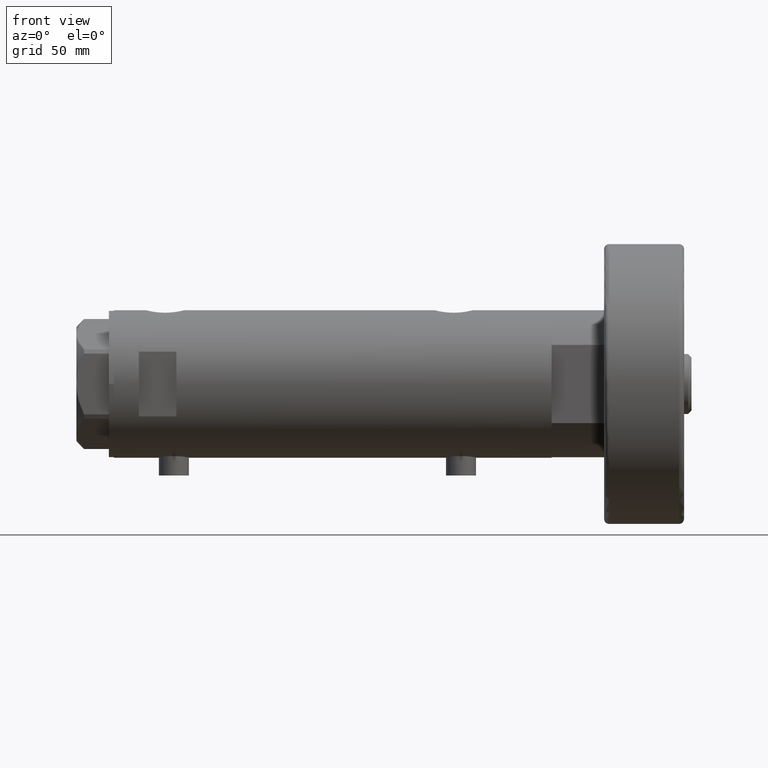
[diagram: clean part render]
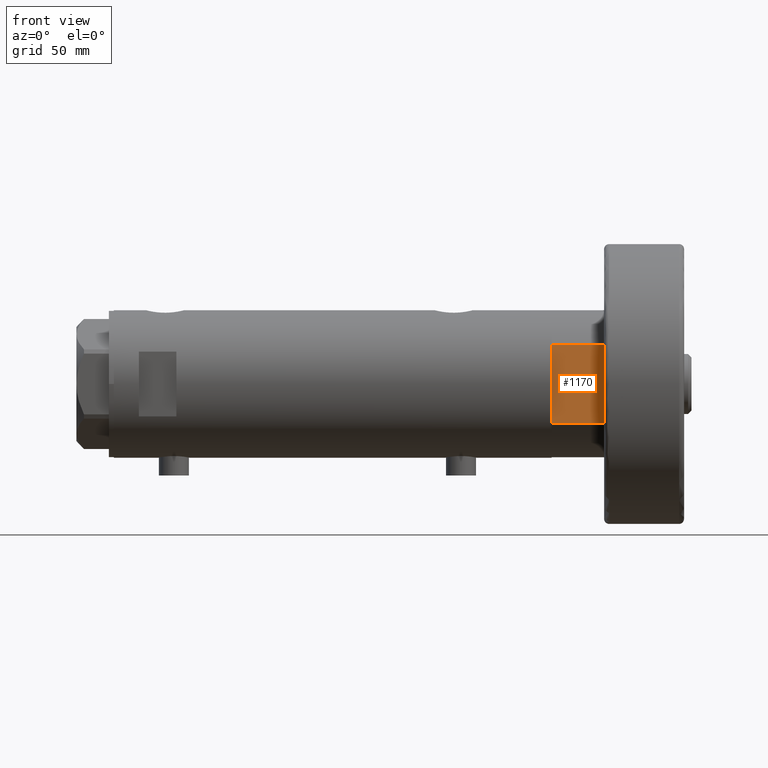
[diagram: same view with one face highlighted and labeled with its STEP entity id]
A machine part, front view. The second image highlights one B-rep face of the part: STEP entity #1170.
In plain terms, the highlighted planar face has unit normal (-0, 1, 0).
Its self-contained STEP definition (entity closure, byte-faithful):
#31 = ORIENTED_EDGE ( 'NONE', *, *, #1716, .F. ) ;
#34 = CARTESIAN_POINT ( 'NONE',  ( -15.66045976336583401, -25.00000000000000000, 0.000000000000000000 ) ) ;
#206 = VECTOR ( 'NONE', #463, 1000.000000000000000 ) ;
#317 = DIRECTION ( 'NONE',  ( -1.000000000000000000, -0.000000000000000000, -0.000000000000000000 ) ) ;
#365 = LINE ( 'NONE', #4393, #3491 ) ;
#429 = AXIS2_PLACEMENT_3D ( 'NONE', #3906, #3185, #547 ) ;
#437 = LINE ( 'NONE', #34, #206 ) ;
#455 = CARTESIAN_POINT ( 'NONE',  ( 15.66045976336583401, -25.00000000000000000, 0.000000000000000000 ) ) ;
#463 = DIRECTION ( 'NONE',  ( -1.000000000000000000, -0.000000000000000000, -0.000000000000000000 ) ) ;
#547 = DIRECTION ( 'NONE',  ( 0.000000000000000000, -0.000000000000000000, 1.000000000000000000 ) ) ;
#550 = LINE ( 'NONE', #3461, #667 ) ;
#667 = VECTOR ( 'NONE', #1957, 1000.000000000000000 ) ;
#840 = EDGE_CURVE ( 'NONE', #3235, #3634, #2685, .T. ) ;
#1170 = ADVANCED_FACE ( 'NONE', ( #1712 ), #1314, .F. ) ;
#1314 = PLANE ( 'NONE',  #429 ) ;
#1346 = EDGE_LOOP ( 'NONE', ( #4213, #3534, #31, #4800, #4188, #4054 ) ) ;
#1552 = VERTEX_POINT ( 'NONE', #2749 ) ;
#1571 = CARTESIAN_POINT ( 'NONE',  ( 15.66045976336583401, -25.00000000000000000, 0.000000000000000000 ) ) ;
#1712 = FACE_OUTER_BOUND ( 'NONE', #1346, .T. ) ;
#1716 = EDGE_CURVE ( 'NONE', #4446, #2923, #437, .T. ) ;
#1957 = DIRECTION ( 'NONE',  ( -1.000000000000000000, -0.000000000000000000, -0.000000000000000000 ) ) ;
#2074 = VERTEX_POINT ( 'NONE', #3095 ) ;
#2083 = CARTESIAN_POINT ( 'NONE',  ( -15.66045976336583401, -25.00000000000000000, 0.000000000000000000 ) ) ;
#2316 = VECTOR ( 'NONE', #317, 1000.000000000000000 ) ;
#2577 = CARTESIAN_POINT ( 'NONE',  ( -7.141428428542853091, -25.00000000000000000, 0.000000000000000000 ) ) ;
#2673 = LINE ( 'NONE', #4428, #2316 ) ;
#2685 = LINE ( 'NONE', #455, #3231 ) ;
#2744 = EDGE_CURVE ( 'NONE', #3235, #1552, #550, .T. ) ;
#2749 = CARTESIAN_POINT ( 'NONE',  ( 7.141428428542853091, -25.00000000000000000, 0.000000000000000000 ) ) ;
#2863 = EDGE_CURVE ( 'NONE', #1552, #4446, #4714, .T. ) ;
#2923 = VERTEX_POINT ( 'NONE', #3967 ) ;
#3060 = EDGE_CURVE ( 'NONE', #3634, #2074, #2673, .T. ) ;
#3095 = CARTESIAN_POINT ( 'NONE',  ( -15.66045976336583045, -24.99999999999999645, 20.99999999999999645 ) ) ;
#3185 = DIRECTION ( 'NONE',  ( -0.000000000000000000, 1.000000000000000000, 0.000000000000000000 ) ) ;
#3231 = VECTOR ( 'NONE', #3439, 1000.000000000000000 ) ;
#3235 = VERTEX_POINT ( 'NONE', #1571 ) ;
#3355 = DIRECTION ( 'NONE',  ( -0.000000000000000000, -0.000000000000000000, 1.000000000000000000 ) ) ;
#3360 = CARTESIAN_POINT ( 'NONE',  ( 15.66045976336583045, -25.00000000000000000, 21.00000000000000355 ) ) ;
#3439 = DIRECTION ( 'NONE',  ( -0.000000000000000000, -0.000000000000000000, 1.000000000000000000 ) ) ;
#3461 = CARTESIAN_POINT ( 'NONE',  ( -15.66045976336583401, -25.00000000000000000, 0.000000000000000000 ) ) ;
#3491 = VECTOR ( 'NONE', #3355, 1000.000000000000000 ) ;
#3534 = ORIENTED_EDGE ( 'NONE', *, *, #3789, .F. ) ;
#3622 = DIRECTION ( 'NONE',  ( -1.000000000000000000, -0.000000000000000000, -0.000000000000000000 ) ) ;
#3634 = VERTEX_POINT ( 'NONE', #3360 ) ;
#3789 = EDGE_CURVE ( 'NONE', #2923, #2074, #365, .T. ) ;
#3804 = VECTOR ( 'NONE', #3622, 1000.000000000000000 ) ;
#3906 = CARTESIAN_POINT ( 'NONE',  ( -15.66045976336583401, -25.00000000000000000, 0.000000000000000000 ) ) ;
#3967 = CARTESIAN_POINT ( 'NONE',  ( -15.66045976336582690, -25.00000000000000000, 0.000000000000000000 ) ) ;
#4054 = ORIENTED_EDGE ( 'NONE', *, *, #840, .T. ) ;
#4188 = ORIENTED_EDGE ( 'NONE', *, *, #2744, .F. ) ;
#4213 = ORIENTED_EDGE ( 'NONE', *, *, #3060, .T. ) ;
#4393 = CARTESIAN_POINT ( 'NONE',  ( -15.66045976336583401, -25.00000000000000000, 0.000000000000000000 ) ) ;
#4428 = CARTESIAN_POINT ( 'NONE',  ( -15.66045976336583401, -25.00000000000000000, 21.00000000000000000 ) ) ;
#4446 = VERTEX_POINT ( 'NONE', #2577 ) ;
#4714 = LINE ( 'NONE', #2083, #3804 ) ;
#4800 = ORIENTED_EDGE ( 'NONE', *, *, #2863, .F. ) ;